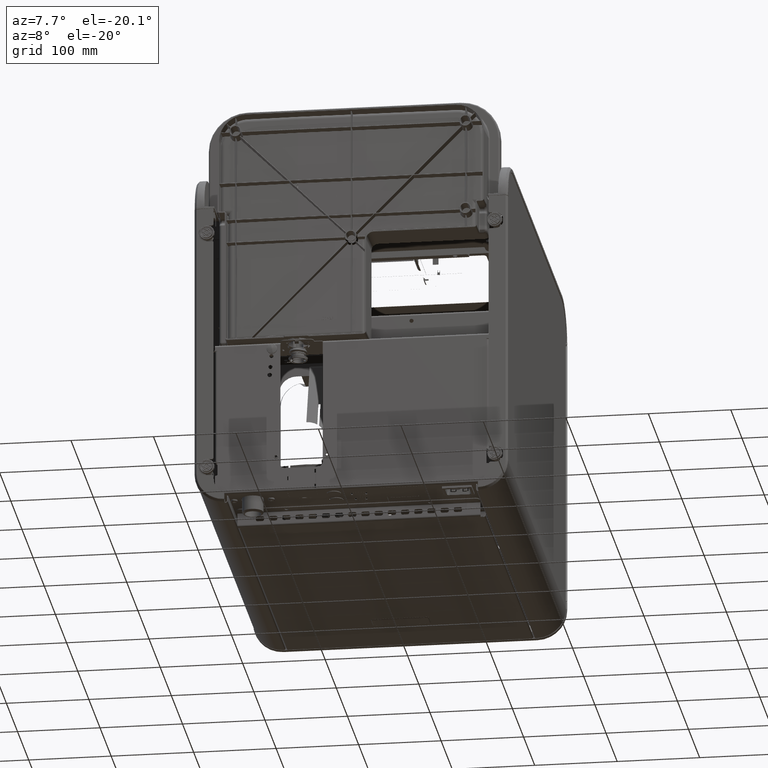
[diagram: clean part render]
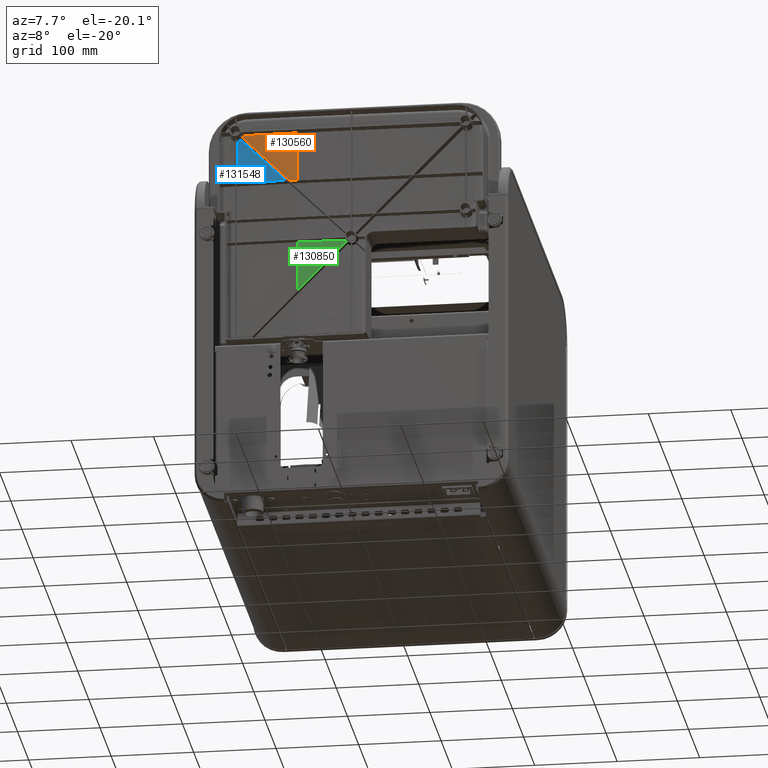
[diagram: same view with three faces highlighted in distinct colors, each labeled with its STEP entity id]
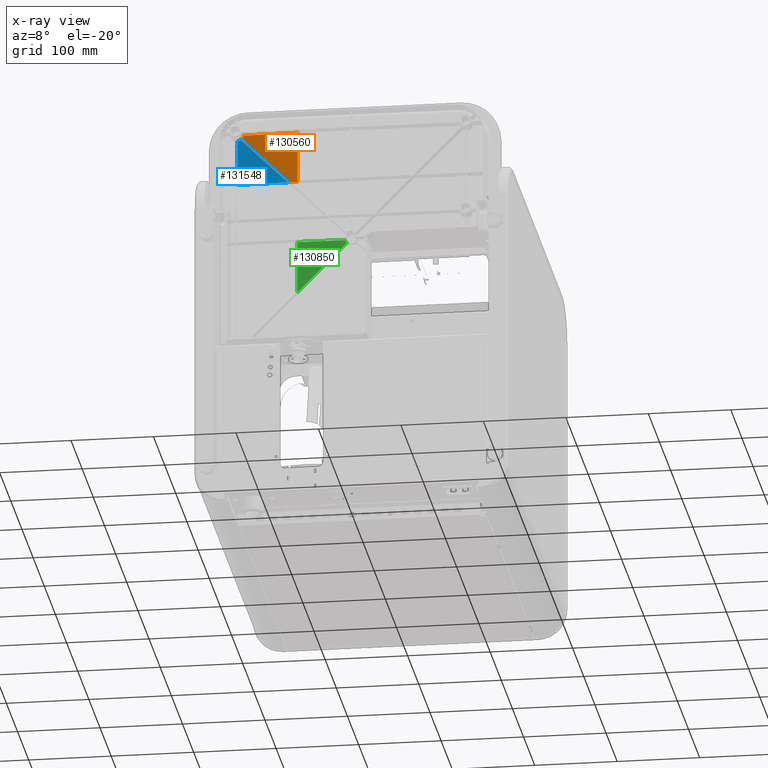
[diagram: x-ray of the same camera — body ghosted, the three highlighted faces saturated]
A machine part, auxiliary view with three faces highlighted in distinct colors.
The next image is the same camera in x-ray (body ghosted, the three faces saturated) — at least one of them is partly hidden behind the body in this view.
Their STEP definitions:

[orange] entity #130560 — the highlighted planar face has unit normal (0.0175, 0.9997, -0.0174).
#20907=ELLIPSE('',#137719,7.99924793662251,7.99680850214472);
#23775=FACE_OUTER_BOUND('',#29908,.T.);
#29908=EDGE_LOOP('',(#100197,#100198,#100199,#100200,#100201));
#38024=LINE('',#204661,#48049);
#38025=LINE('',#204663,#48050);
#38026=LINE('',#204665,#48051);
#38027=LINE('',#204668,#48052);
#48049=VECTOR('',#153727,10.);
#48050=VECTOR('',#153728,10.);
#48051=VECTOR('',#153729,10.);
#48052=VECTOR('',#153732,10.);
#58680=VERTEX_POINT('',#204659);
#58681=VERTEX_POINT('',#204660);
#58682=VERTEX_POINT('',#204662);
#58683=VERTEX_POINT('',#204664);
#58684=VERTEX_POINT('',#204666);
#75732=EDGE_CURVE('',#58680,#58681,#38024,.T.);
#75733=EDGE_CURVE('',#58680,#58682,#38025,.T.);
#75734=EDGE_CURVE('',#58683,#58682,#38026,.T.);
#75735=EDGE_CURVE('',#58684,#58683,#20907,.T.);
#75736=EDGE_CURVE('',#58681,#58684,#38027,.T.);
#100197=ORIENTED_EDGE('',*,*,#75732,.F.);
#100198=ORIENTED_EDGE('',*,*,#75733,.T.);
#100199=ORIENTED_EDGE('',*,*,#75734,.F.);
#100200=ORIENTED_EDGE('',*,*,#75735,.F.);
#100201=ORIENTED_EDGE('',*,*,#75736,.F.);
#127979=PLANE('',#137718);
#130560=ADVANCED_FACE('',(#23775),#127979,.F.);
#137718=AXIS2_PLACEMENT_3D('',#204658,#153725,#153726);
#137719=AXIS2_PLACEMENT_3D('',#204667,#153730,#153731);
#153725=DIRECTION('center_axis',(0.0174524064373004,0.999695413509548,-0.0174497483512251));
#153726=DIRECTION('ref_axis',(0.999847695156391,-0.0174497483512541,0.000304586491215412));
#153727=DIRECTION('',(-0.999847590744455,0.0174577224061316,0.000152351234602738));
#153728=DIRECTION('',(-7.63688918605628E-13,0.0174524064372715,0.999847695156391));
#153729=DIRECTION('',(0.999847683559775,-0.0174524062348674,0.000152304842605171));
#153730=DIRECTION('center_axis',(-0.0174524064373004,-0.999695413509548,
0.0174497483512251));
#153731=DIRECTION('ref_axis',(0.706945239551009,-0.0246795504005606,-0.706837568376351));
#153732=DIRECTION('',(-0.704606520933645,0.0246794158369041,0.709168934099439));
#204658=CARTESIAN_POINT('Origin',(-15.087379981644,-0.514361864145944,155.075483137172));
#204659=CARTESIAN_POINT('',(-66.0741721058369,1.12139703094005,197.793488631332));
#204660=CARTESIAN_POINT('',(-74.9697248376098,1.27671679334981,197.794844086358));
#204661=CARTESIAN_POINT('',(-45.1249345233079,0.75561530808409,197.790296502613));
#204662=CARTESIAN_POINT('',(-66.0741721058852,2.22575570115039,261.062154474323));
#204663=CARTESIAN_POINT('',(-66.0741721058042,0.375480354938371,155.059950883423));
#204664=CARTESIAN_POINT('',(-131.995273235913,3.37641280151487,261.052112841885));
#204665=CARTESIAN_POINT('',(51.4581358875783,0.174221633960795,261.080057940985));
#204666=CARTESIAN_POINT('',(-133.715371158054,3.33433078225933,256.92087563209));
#204667=CARTESIAN_POINT('Origin',(-139.942916827619,3.53061531635395,261.937514759668));
#204668=CARTESIAN_POINT('',(-77.4024850169517,1.36192619507077,200.243356684591));

[blue] entity #131548 — the highlighted planar face has unit normal (0.0175, 0.9997, -0.0174).
#20905=ELLIPSE('',#137714,7.99924793662251,7.99680850214472);
#24763=FACE_OUTER_BOUND('',#30906,.T.);
#30906=EDGE_LOOP('',(#104950,#104951,#104952,#104953));
#38697=LINE('',#217699,#48722);
#38702=LINE('',#217713,#48727);
#38708=LINE('',#217799,#48733);
#48722=VECTOR('',#156882,10.);
#48727=VECTOR('',#156899,10.);
#48733=VECTOR('',#156935,10.);
#58674=VERTEX_POINT('',#204613);
#58676=VERTEX_POINT('',#204616);
#59914=VERTEX_POINT('',#217697);
#59916=VERTEX_POINT('',#217708);
#75726=EDGE_CURVE('',#58674,#58676,#20905,.T.);
#77680=EDGE_CURVE('',#59914,#58674,#38697,.T.);
#77688=EDGE_CURVE('',#58676,#59916,#38702,.T.);
#77703=EDGE_CURVE('',#59916,#59914,#38708,.T.);
#104950=ORIENTED_EDGE('',*,*,#77680,.F.);
#104951=ORIENTED_EDGE('',*,*,#77703,.F.);
#104952=ORIENTED_EDGE('',*,*,#77688,.F.);
#104953=ORIENTED_EDGE('',*,*,#75726,.F.);
#128151=PLANE('',#139470);
#131548=ADVANCED_FACE('',(#24763),#128151,.F.);
#137714=AXIS2_PLACEMENT_3D('',#204617,#153717,#153718);
#139470=AXIS2_PLACEMENT_3D('',#222354,#158062,#158063);
#153717=DIRECTION('center_axis',(-0.0174524064373004,-0.999695413509548,
0.0174497483512251));
#153718=DIRECTION('ref_axis',(0.706945239551009,-0.0246795504005606,-0.706837568376351));
#156882=DIRECTION('',(0.000152281647846088,0.0174497485536273,0.999847729949773));
#156899=DIRECTION('',(0.704912021320119,-0.0246794486524646,-0.708865267178887));
#156935=DIRECTION('',(-0.999847590744455,0.0174577224061316,0.000152351234602738));
#158062=DIRECTION('center_axis',(0.0174524064373004,0.999695413509548,-0.0174497483512251));
#158063=DIRECTION('ref_axis',(0.999847695156391,-0.0174497483512541,0.000304586491215412));
#204613=CARTESIAN_POINT('',(-139.057514003566,3.37643156522921,253.989871269368));
#204616=CARTESIAN_POINT('',(-134.963846408503,3.3344648569369,255.679891336979));
#204617=CARTESIAN_POINT('Origin',(-139.942916827619,3.53061531635395,261.937514759668));
#217697=CARTESIAN_POINT('',(-139.066071290644,2.39586358530353,197.8046107324));
#217699=CARTESIAN_POINT('',(-139.065570766468,2.45321797524962,201.090942132191));
#217708=CARTESIAN_POINT('',(-77.4019847961199,1.31918498507052,197.79521470065));
#217713=CARTESIAN_POINT('',(-15.3890319579048,-0.851930613855301,135.434484492234));
#217799=CARTESIAN_POINT('',(-45.1249345233079,0.75561530808409,197.790296502613));
#222354=CARTESIAN_POINT('Origin',(-15.087379981644,-0.514361864145944,155.075483137172));

[green] entity #130850 — the highlighted planar face has unit normal (-0.0087, 0.9998, -0.0175).
#20971=ELLIPSE('',#138219,7.88752341683932,7.88601999052819);
#24065=FACE_OUTER_BOUND('',#30198,.T.);
#30198=EDGE_LOOP('',(#101519,#101520,#101521,#101522));
#38232=LINE('',#210805,#48257);
#38234=LINE('',#210814,#48259);
#38235=LINE('',#210817,#48260);
#48257=VECTOR('',#154933,10.);
#48259=VECTOR('',#154937,0.3);
#48260=VECTOR('',#154940,0.3);
#59210=VERTEX_POINT('',#210798);
#59212=VERTEX_POINT('',#210804);
#59214=VERTEX_POINT('',#210813);
#59215=VERTEX_POINT('',#210815);
#76551=EDGE_CURVE('',#59212,#59210,#38232,.T.);
#76554=EDGE_CURVE('',#59214,#59210,#38234,.T.);
#76555=EDGE_CURVE('',#59215,#59214,#20971,.T.);
#76556=EDGE_CURVE('',#59212,#59215,#38235,.T.);
#101519=ORIENTED_EDGE('',*,*,#76554,.F.);
#101520=ORIENTED_EDGE('',*,*,#76555,.F.);
#101521=ORIENTED_EDGE('',*,*,#76556,.F.);
#101522=ORIENTED_EDGE('',*,*,#76551,.T.);
#128031=PLANE('',#138218);
#130850=ADVANCED_FACE('',(#24065),#128031,.F.);
#138218=AXIS2_PLACEMENT_3D('',#210812,#154935,#154936);
#138219=AXIS2_PLACEMENT_3D('',#210816,#154938,#154939);
#154933=DIRECTION('',(7.63688918605628E-13,-0.0174524064372715,-0.999847695156391));
#154935=DIRECTION('center_axis',(-0.00872653549835701,0.999809624019865,
-0.0174517419031182));
#154936=DIRECTION('ref_axis',(0.999961923064171,0.00872520640474601,-0.000152299043543326));
#154937=DIRECTION('',(-0.702099445672824,-0.0185532262649223,-0.711837162686155));
#154938=DIRECTION('center_axis',(0.00872653549835701,-0.999809624019865,
0.0174517419031182));
#154939=DIRECTION('ref_axis',(-0.447155698155188,-0.0195119378139932,-0.894243292337208));
#154940=DIRECTION('',(0.999961920164465,0.00872653547306498,-7.61553205812681E-5));
#210798=CARTESIAN_POINT('',(-65.9432773960498,-1.36482643280017,55.390567334592));
#210804=CARTESIAN_POINT('',(-65.9432773960949,-0.232913856866125,120.23779537927));
#210805=CARTESIAN_POINT('',(-65.9432773961259,0.374909302386789,155.059960851182));
#210812=CARTESIAN_POINT('Origin',(-15.0292015819836,0.819162038554996,155.052206390867));
#210813=CARTESIAN_POINT('',(-6.05575150209135,0.217722628027286,116.108698897559));
#210814=CARTESIAN_POINT('',(-106.09604082956,-2.42587741316365,14.6809080795164));
#210815=CARTESIAN_POINT('',(-7.7826690064462,0.274646083180227,120.233365970822));
#210816=CARTESIAN_POINT('Origin',(0.0565082661995651,0.358049045736316,
121.091631350337));
#210817=CARTESIAN_POINT('',(-15.0265496810798,0.211429694240693,120.233917651885));